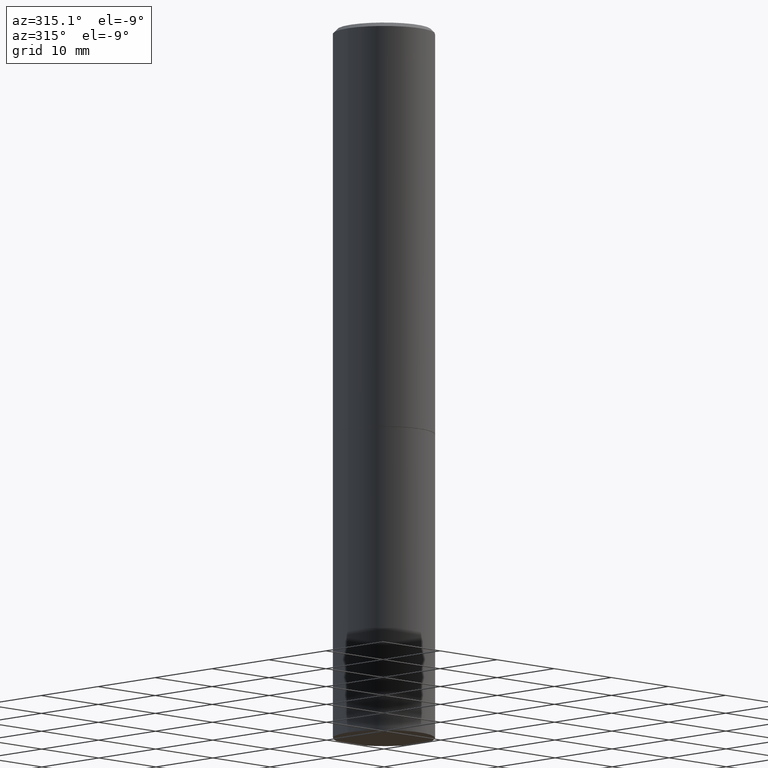
[diagram: clean part render]
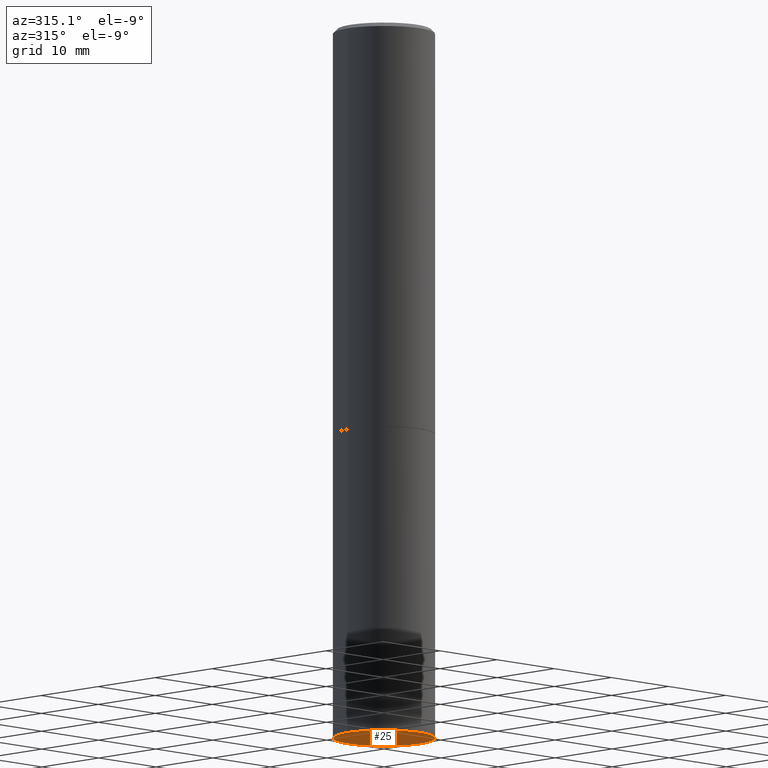
[diagram: same view with one face highlighted and labeled with its STEP entity id]
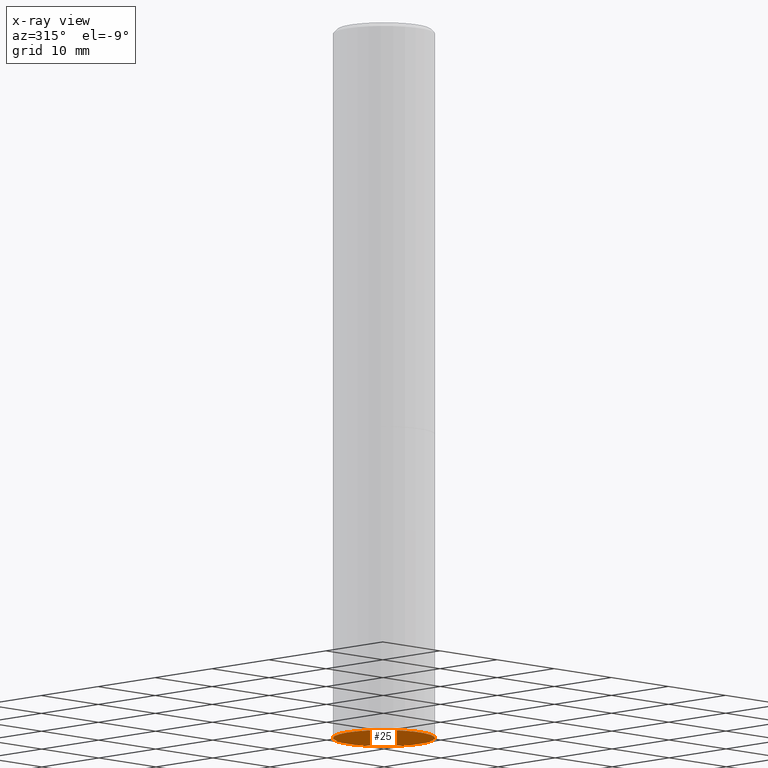
[diagram: x-ray of the same camera — body ghosted, the highlighted face saturated]
A machine part, auxiliary view. The second image highlights one B-rep face of the part: STEP entity #25.
The next image is the same camera in x-ray: the body ghosted, the highlighted face saturated — about 0% of this face is hidden behind the body in this view.
In plain terms, the highlighted planar face has unit normal (0, -0, -1).
Its self-contained STEP definition (entity closure, byte-faithful):
#20 = EDGE_LOOP ( 'NONE', ( #139, #33 ) ) ;
#25 = ADVANCED_FACE ( 'NONE', ( #162 ), #166, .T. ) ;
#33 = ORIENTED_EDGE ( 'NONE', *, *, #130, .F. ) ;
#59 = DIRECTION ( 'NONE',  ( 1.000000000000000000, -6.982962677686270655E-15, 0.000000000000000000 ) ) ;
#64 = AXIS2_PLACEMENT_3D ( 'NONE', #121, #339, #200 ) ;
#106 = AXIS2_PLACEMENT_3D ( 'NONE', #207, #202, #59 ) ;
#121 = CARTESIAN_POINT ( 'NONE',  ( 8.559140821647976968E-29, -1.222018468595100934E-14, -3.500000000000000000 ) ) ;
#130 = EDGE_CURVE ( 'NONE', #191, #327, #170, .T. ) ;
#139 = ORIENTED_EDGE ( 'NONE', *, *, #201, .F. ) ;
#162 = FACE_OUTER_BOUND ( 'NONE', #20, .T. ) ;
#166 = PLANE ( 'NONE',  #344 ) ;
#170 = CIRCLE ( 'NONE', #106, 0.2500000000000000000 ) ;
#179 = CARTESIAN_POINT ( 'NONE',  ( 0.2500000000000000000, -1.396592535537257602E-14, -3.500000000000000000 ) ) ;
#191 = VERTEX_POINT ( 'NONE', #258 ) ;
#200 = DIRECTION ( 'NONE',  ( 1.000000000000000000, -6.982962677686270655E-15, 0.000000000000000000 ) ) ;
#201 = EDGE_CURVE ( 'NONE', #327, #191, #217, .T. ) ;
#202 = DIRECTION ( 'NONE',  ( -2.445468806185136597E-29, 3.491481338843145583E-15, 1.000000000000000000 ) ) ;
#207 = CARTESIAN_POINT ( 'NONE',  ( 8.559140821647976968E-29, -1.222018468595100934E-14, -3.500000000000000000 ) ) ;
#217 = CIRCLE ( 'NONE', #64, 0.2500000000000000000 ) ;
#224 = CARTESIAN_POINT ( 'NONE',  ( 1.745740669421652072E-15, 0.2499999999999877598, -3.500000000000000888 ) ) ;
#226 = DIRECTION ( 'NONE',  ( 2.438088387897960049E-29, -3.491481338843145188E-15, -1.000000000000000000 ) ) ;
#258 = CARTESIAN_POINT ( 'NONE',  ( -0.2500000000000000000, -7.825216842418397817E-15, -3.500000000000000000 ) ) ;
#327 = VERTEX_POINT ( 'NONE', #179 ) ;
#334 = DIRECTION ( 'NONE',  ( -1.000000000000000000, 6.982962677686265922E-15, -4.876176775795935793E-29 ) ) ;
#339 = DIRECTION ( 'NONE',  ( -2.445468806185136597E-29, 3.491481338843145583E-15, 1.000000000000000000 ) ) ;
#344 = AXIS2_PLACEMENT_3D ( 'NONE', #224, #226, #334 ) ;